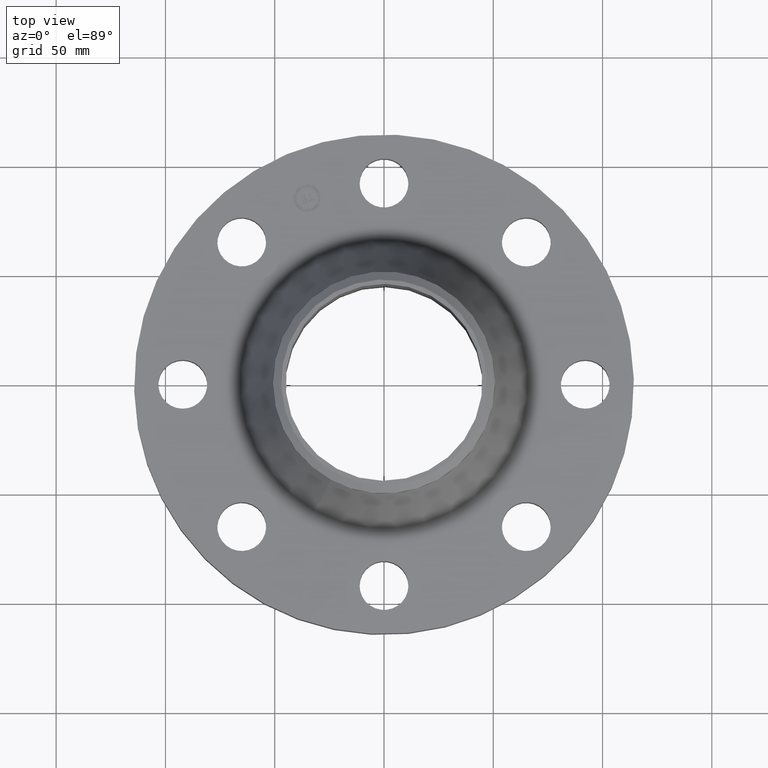
[diagram: clean part render]
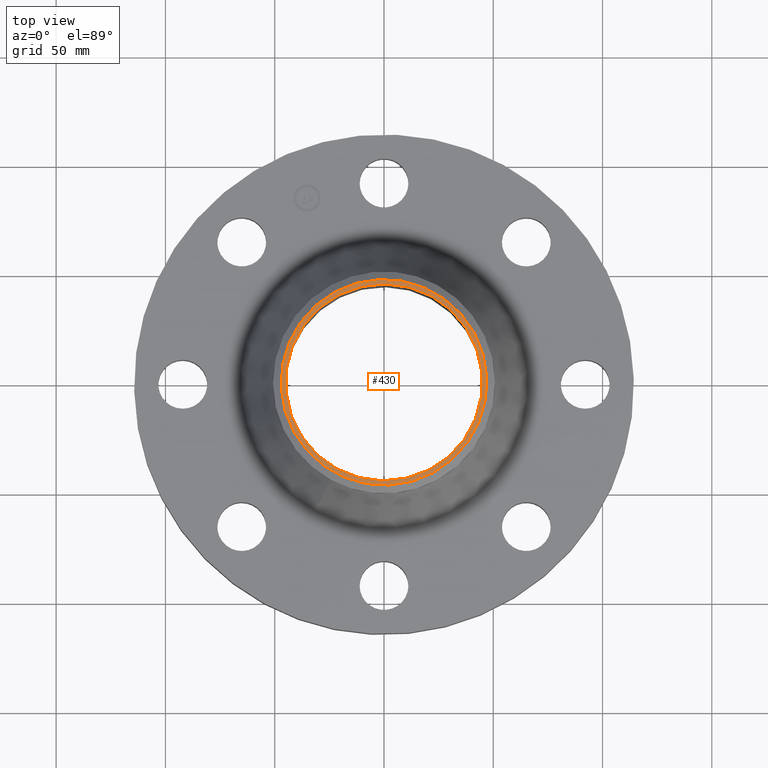
[diagram: same view with one face highlighted and labeled with its STEP entity id]
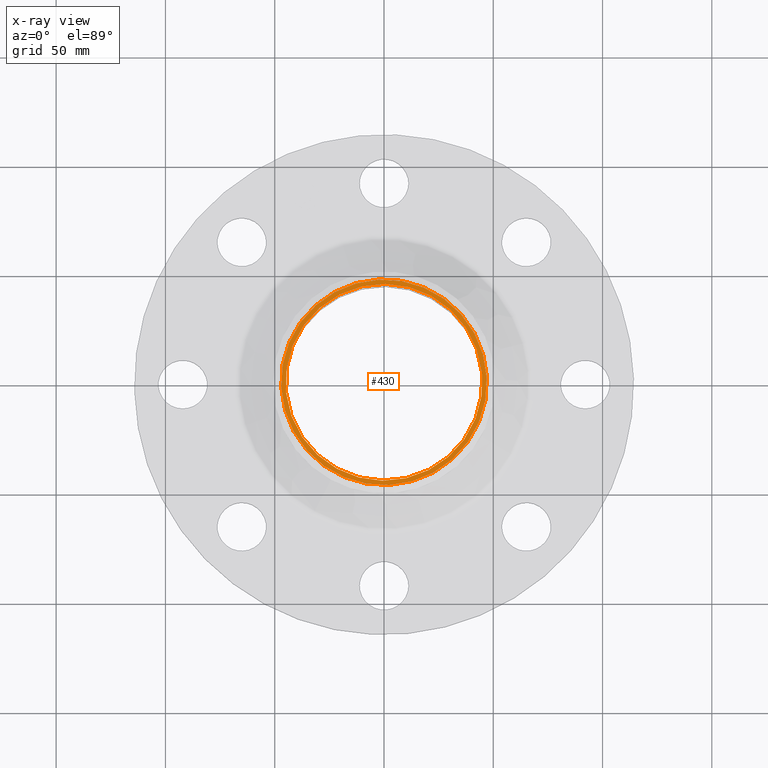
[diagram: x-ray of the same camera — body ghosted, the highlighted face saturated]
A machine part, top view. The second image highlights one B-rep face of the part: STEP entity #430.
The next image is the same camera in x-ray: the body ghosted, the highlighted face saturated — about 0% of this face is hidden behind the body in this view.
In plain terms, the highlighted planar face has unit normal (0, 0, -1).
Its self-contained STEP definition (entity closure, byte-faithful):
#337=AXIS2_PLACEMENT_3D('Circle Axis2P3D',#335,#336,$) ;
#362=AXIS2_PLACEMENT_3D('Circle Axis2P3D',#360,#361,$) ;
#397=AXIS2_PLACEMENT_3D('Circle Axis2P3D',#395,#396,$) ;
#415=AXIS2_PLACEMENT_3D('Plane Axis2P3D',#412,#413,#414) ;
#419=AXIS2_PLACEMENT_3D('Circle Axis2P3D',#417,#418,$) ;
#332=CARTESIAN_POINT('Vertex',(0.888250947897,-1.62593245392,3.13000000001)) ;
#335=CARTESIAN_POINT('Axis2P3D Location',(0.,0.,3.13000000001)) ;
#339=CARTESIAN_POINT('Vertex',(-0.888250947897,1.62593245392,3.13000000001)) ;
#360=CARTESIAN_POINT('Axis2P3D Location',(0.,0.,3.13000000001)) ;
#364=CARTESIAN_POINT('Vertex',(0.850500905487,1.5568314648,3.13000000001)) ;
#366=CARTESIAN_POINT('Vertex',(-0.850500905487,-1.5568314648,3.13000000001)) ;
#395=CARTESIAN_POINT('Axis2P3D Location',(0.,0.,3.13000000001)) ;
#412=CARTESIAN_POINT('Axis2P3D Location',(0.,2.00000000001,3.13000000001)) ;
#417=CARTESIAN_POINT('Axis2P3D Location',(0.,0.,3.13000000001)) ;
#336=DIRECTION('Axis2P3D Direction',(0.,0.,-0.0393700787402)) ;
#361=DIRECTION('Axis2P3D Direction',(0.,0.,-0.0393700787402)) ;
#396=DIRECTION('Axis2P3D Direction',(0.,0.,-0.0393700787402)) ;
#413=DIRECTION('Axis2P3D Direction',(0.,0.,-0.0393700787402)) ;
#414=DIRECTION('Axis2P3D XDirection',(0.0393700787402,0.,0.)) ;
#418=DIRECTION('Axis2P3D Direction',(0.,0.,-0.0393700787402)) ;
#423=ORIENTED_EDGE('',*,*,#421,.T.) ;
#424=ORIENTED_EDGE('',*,*,#341,.T.) ;
#427=ORIENTED_EDGE('',*,*,#399,.T.) ;
#428=ORIENTED_EDGE('',*,*,#368,.T.) ;
#429=FACE_BOUND('',#426,.T.) ;
#430=ADVANCED_FACE('PartBody',(#425,#429),#416,.F.) ;
#338=CIRCLE('generated circle',#337,1.85274015749) ;
#363=CIRCLE('generated circle',#362,1.77400000001) ;
#398=CIRCLE('generated circle',#397,1.77400000001) ;
#420=CIRCLE('generated circle',#419,1.85274015749) ;
#341=EDGE_CURVE('',#340,#333,#338,.F.) ;
#368=EDGE_CURVE('',#365,#367,#363,.T.) ;
#399=EDGE_CURVE('',#367,#365,#398,.T.) ;
#421=EDGE_CURVE('',#333,#340,#420,.F.) ;
#422=EDGE_LOOP('',(#423,#424)) ;
#426=EDGE_LOOP('',(#427,#428)) ;
#425=FACE_OUTER_BOUND('',#422,.T.) ;
#416=PLANE('',#415) ;
#333=VERTEX_POINT('',#332) ;
#340=VERTEX_POINT('',#339) ;
#365=VERTEX_POINT('',#364) ;
#367=VERTEX_POINT('',#366) ;